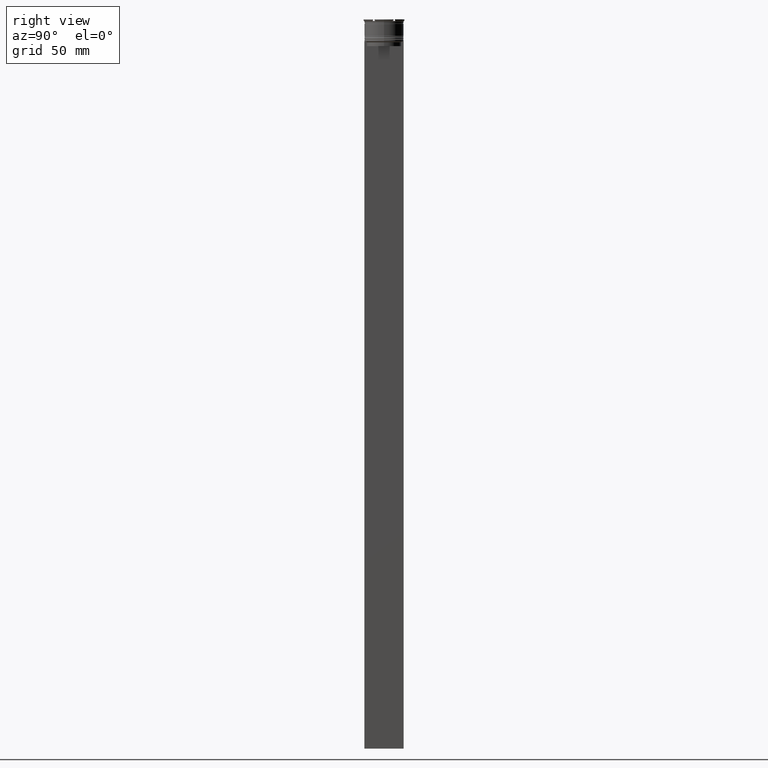
[diagram: clean part render]
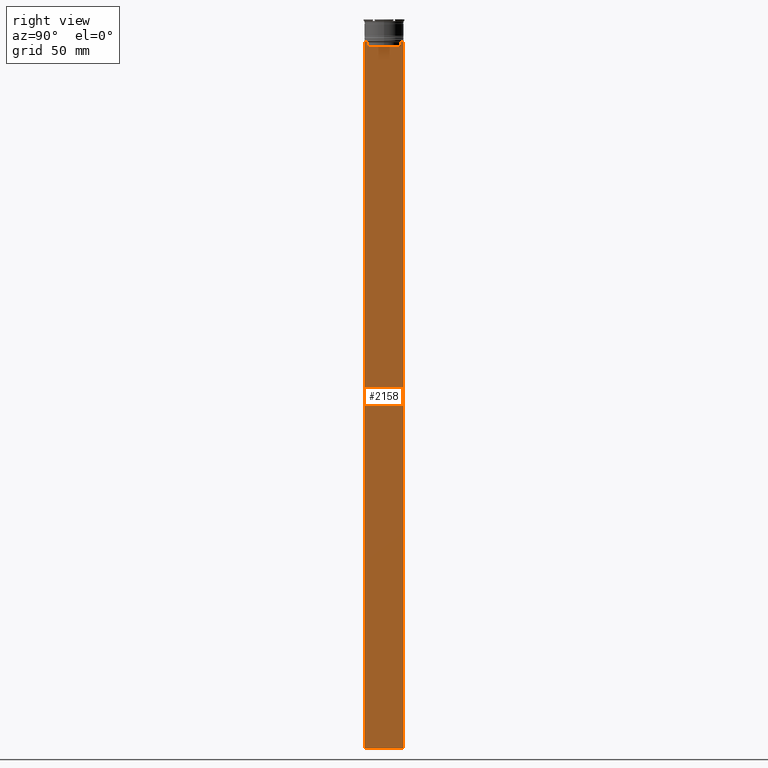
[diagram: same view with one face highlighted and labeled with its STEP entity id]
A machine part, right view. The second image highlights one B-rep face of the part: STEP entity #2158.
In plain terms, the highlighted planar face has unit normal (-1, 0, 0).
Its self-contained STEP definition (entity closure, byte-faithful):
#8 = EDGE_CURVE ( 'NONE', #1983, #918, #2134, .T. ) ;
#26 = CARTESIAN_POINT ( 'NONE',  ( 0.5000000000000000000, 12.50000000000000711, -464.0000000000000000 ) ) ;
#128 = VERTEX_POINT ( 'NONE', #1977 ) ;
#129 = CARTESIAN_POINT ( 'NONE',  ( 0.5000000000000000000, -11.22219891450652973, -14.16667035398018903 ) ) ;
#131 = DIRECTION ( 'NONE',  ( -1.000000000000000000, 0.000000000000000000, 0.000000000000000000 ) ) ;
#142 = LINE ( 'NONE', #347, #1583 ) ;
#144 = CARTESIAN_POINT ( 'NONE',  ( 0.5000000000000000000, 10.90000000000000213, -17.00000000000000000 ) ) ;
#161 = DIRECTION ( 'NONE',  ( -0.000000000000000000, -0.000000000000000000, 1.000000000000000000 ) ) ;
#218 = LINE ( 'NONE', #420, #1773 ) ;
#248 = VERTEX_POINT ( 'NONE', #2034 ) ;
#339 = ORIENTED_EDGE ( 'NONE', *, *, #1275, .T. ) ;
#347 = CARTESIAN_POINT ( 'NONE',  ( 0.5000000000000000000, -12.49999999999999289, 11.01999200639360765 ) ) ;
#367 = PLANE ( 'NONE',  #1644 ) ;
#380 = LINE ( 'NONE', #144, #403 ) ;
#403 = VECTOR ( 'NONE', #1677, 1000.000000000000000 ) ;
#420 = CARTESIAN_POINT ( 'NONE',  ( 0.5000000000000000000, -12.49999999999999289, -14.00000000000000178 ) ) ;
#474 = CARTESIAN_POINT ( 'NONE',  ( 0.5000000000000000000, 10.88852607105296144, -17.00000000000000000 ) ) ;
#476 = EDGE_CURVE ( 'NONE', #2355, #128, #142, .T. ) ;
#500 = VERTEX_POINT ( 'NONE', #807 ) ;
#512 = ORIENTED_EDGE ( 'NONE', *, *, #2580, .T. ) ;
#548 = EDGE_CURVE ( 'NONE', #1887, #2882, #218, .T. ) ;
#572 = B_SPLINE_CURVE_WITH_KNOTS ( 'NONE', 3,
 ( #2584, #2094, #129, #2318 ),
 .UNSPECIFIED., .F., .F.,
 ( 4, 4 ),
 ( 0.05041323384703226551, 0.05112713601261605068 ),
 .UNSPECIFIED. ) ;
#613 = DIRECTION ( 'NONE',  ( 0.000000000000000000, 0.000000000000000000, -1.000000000000000000 ) ) ;
#779 = VERTEX_POINT ( 'NONE', #474 ) ;
#794 = CARTESIAN_POINT ( 'NONE',  ( 0.5000000000000000000, -12.49999999999999289, -14.00000000000000178 ) ) ;
#807 = CARTESIAN_POINT ( 'NONE',  ( 0.5000000000000000000, 10.88852607105296322, -14.50000000000000000 ) ) ;
#918 = VERTEX_POINT ( 'NONE', #2125 ) ;
#998 = CARTESIAN_POINT ( 'NONE',  ( 0.5000000000000000000, 12.38991525394746773, -14.00000000000000178 ) ) ;
#1020 = DIRECTION ( 'NONE',  ( 0.000000000000000000, 0.000000000000000000, 1.000000000000000000 ) ) ;
#1027 = EDGE_CURVE ( 'NONE', #1887, #1848, #2608, .T. ) ;
#1032 = DIRECTION ( 'NONE',  ( 0.000000000000000000, 0.000000000000000000, -1.000000000000000000 ) ) ;
#1080 = CARTESIAN_POINT ( 'NONE',  ( 0.5000000000000000000, 12.50000000000000711, -14.00000000000000178 ) ) ;
#1081 = VERTEX_POINT ( 'NONE', #1137 ) ;
#1099 = VECTOR ( 'NONE', #1652, 1000.000000000000000 ) ;
#1136 = ORIENTED_EDGE ( 'NONE', *, *, #548, .T. ) ;
#1137 = CARTESIAN_POINT ( 'NONE',  ( 0.5000000000000000000, 11.38902980942626719, -14.00000000000000178 ) ) ;
#1201 = ORIENTED_EDGE ( 'NONE', *, *, #2873, .T. ) ;
#1226 = ORIENTED_EDGE ( 'NONE', *, *, #2130, .T. ) ;
#1238 = EDGE_CURVE ( 'NONE', #2882, #1081, #1403, .T. ) ;
#1261 = EDGE_LOOP ( 'NONE', ( #1624, #1201, #2749, #1393, #1338, #512, #2011, #339, #2166, #1226, #1288, #1136 ) ) ;
#1275 = EDGE_CURVE ( 'NONE', #2637, #2355, #1835, .T. ) ;
#1288 = ORIENTED_EDGE ( 'NONE', *, *, #1027, .F. ) ;
#1338 = ORIENTED_EDGE ( 'NONE', *, *, #8, .T. ) ;
#1393 = ORIENTED_EDGE ( 'NONE', *, *, #2080, .T. ) ;
#1403 = LINE ( 'NONE', #794, #1099 ) ;
#1435 = DIRECTION ( 'NONE',  ( 0.000000000000000000, -1.000000000000000000, 0.000000000000000000 ) ) ;
#1476 = CARTESIAN_POINT ( 'NONE',  ( 0.5000000000000000000, -12.49999999999999289, 11.01999200639360765 ) ) ;
#1583 = VECTOR ( 'NONE', #1032, 1000.000000000000000 ) ;
#1624 = ORIENTED_EDGE ( 'NONE', *, *, #1238, .T. ) ;
#1627 = CARTESIAN_POINT ( 'NONE',  ( 0.5000000000000000000, 11.38902980942626719, -14.00000000000000178 ) ) ;
#1644 = AXIS2_PLACEMENT_3D ( 'NONE', #1476, #131, #1020 ) ;
#1652 = DIRECTION ( 'NONE',  ( 0.000000000000000000, -1.000000000000000000, 0.000000000000000000 ) ) ;
#1677 = DIRECTION ( 'NONE',  ( 0.000000000000000000, -1.000000000000000000, 0.000000000000000000 ) ) ;
#1713 = CARTESIAN_POINT ( 'NONE',  ( 0.5000000000000000000, 12.50000000000000711, 11.01999200639360765 ) ) ;
#1771 = CARTESIAN_POINT ( 'NONE',  ( 0.5000000000000000000, -12.49999999999999289, -14.00000000000000178 ) ) ;
#1773 = VECTOR ( 'NONE', #2505, 1000.000000000000000 ) ;
#1778 = VECTOR ( 'NONE', #613, 1000.000000000000000 ) ;
#1835 = LINE ( 'NONE', #2099, #2852 ) ;
#1848 = VERTEX_POINT ( 'NONE', #26 ) ;
#1851 = CARTESIAN_POINT ( 'NONE',  ( 0.5000000000000000000, 11.05536450345590538, -14.33333719074559376 ) ) ;
#1876 = DIRECTION ( 'NONE',  ( 0.000000000000000000, 1.000000000000000000, 0.000000000000000000 ) ) ;
#1887 = VERTEX_POINT ( 'NONE', #1080 ) ;
#1931 = CARTESIAN_POINT ( 'NONE',  ( 0.5000000000000000000, -12.49999999999999289, -464.0000000000000000 ) ) ;
#1974 = DIRECTION ( 'NONE',  ( 0.000000000000000000, -1.000000000000000000, 0.000000000000000000 ) ) ;
#1977 = CARTESIAN_POINT ( 'NONE',  ( 0.5000000000000000000, -12.49999999999999289, -464.0000000000000000 ) ) ;
#1983 = VERTEX_POINT ( 'NONE', #2543 ) ;
#2011 = ORIENTED_EDGE ( 'NONE', *, *, #2274, .T. ) ;
#2034 = CARTESIAN_POINT ( 'NONE',  ( 0.5000000000000000000, -11.38902980942626719, -14.00000000000000178 ) ) ;
#2080 = EDGE_CURVE ( 'NONE', #779, #1983, #380, .T. ) ;
#2094 = CARTESIAN_POINT ( 'NONE',  ( 0.5000000000000000000, -11.05536450423839234, -14.33333718996393102 ) ) ;
#2099 = CARTESIAN_POINT ( 'NONE',  ( 0.5000000000000000000, -12.49999999999999289, -14.00000000000000178 ) ) ;
#2125 = CARTESIAN_POINT ( 'NONE',  ( 0.5000000000000000000, -10.88852607105296322, -14.50000000000000000 ) ) ;
#2130 = EDGE_CURVE ( 'NONE', #128, #1848, #2330, .T. ) ;
#2134 = LINE ( 'NONE', #2617, #2848 ) ;
#2139 = CARTESIAN_POINT ( 'NONE',  ( 0.5000000000000000000, 10.88852607105296322, -14.50000000000000000 ) ) ;
#2158 = ADVANCED_FACE ( 'NONE', ( #2378 ), #367, .F. ) ;
#2166 = ORIENTED_EDGE ( 'NONE', *, *, #476, .T. ) ;
#2172 = CARTESIAN_POINT ( 'NONE',  ( 0.5000000000000000000, -12.49999999999999289, -14.00000000000000178 ) ) ;
#2180 = DIRECTION ( 'NONE',  ( 0.000000000000000000, 0.000000000000000000, -1.000000000000000000 ) ) ;
#2196 = VECTOR ( 'NONE', #1974, 1000.000000000000000 ) ;
#2213 = LINE ( 'NONE', #2172, #2196 ) ;
#2274 = EDGE_CURVE ( 'NONE', #248, #2637, #2213, .T. ) ;
#2318 = CARTESIAN_POINT ( 'NONE',  ( 0.5000000000000000000, -11.38902980942626719, -14.00000000000000178 ) ) ;
#2330 = LINE ( 'NONE', #1931, #2717 ) ;
#2355 = VERTEX_POINT ( 'NONE', #1771 ) ;
#2374 = B_SPLINE_CURVE_WITH_KNOTS ( 'NONE', 3,
 ( #1627, #2563, #1851, #2139 ),
 .UNSPECIFIED., .F., .F.,
 ( 4, 4 ),
 ( 0.01935560801904634073, 0.02006307108468586772 ),
 .UNSPECIFIED. ) ;
#2378 = FACE_OUTER_BOUND ( 'NONE', #1261, .T. ) ;
#2505 = DIRECTION ( 'NONE',  ( 0.000000000000000000, -1.000000000000000000, 0.000000000000000000 ) ) ;
#2543 = CARTESIAN_POINT ( 'NONE',  ( 0.5000000000000000000, -10.88852607105296144, -17.00000000000000000 ) ) ;
#2563 = CARTESIAN_POINT ( 'NONE',  ( 0.5000000000000000000, 11.22219891375843304, -14.16667035472756808 ) ) ;
#2580 = EDGE_CURVE ( 'NONE', #918, #248, #572, .T. ) ;
#2584 = CARTESIAN_POINT ( 'NONE',  ( 0.5000000000000000000, -10.88852607105296322, -14.50000000000000000 ) ) ;
#2608 = LINE ( 'NONE', #1713, #1778 ) ;
#2617 = CARTESIAN_POINT ( 'NONE',  ( 0.5000000000000000000, -10.88852607105296322, 0.000000000000000000 ) ) ;
#2637 = VERTEX_POINT ( 'NONE', #2820 ) ;
#2665 = EDGE_CURVE ( 'NONE', #500, #779, #2860, .T. ) ;
#2717 = VECTOR ( 'NONE', #1876, 1000.000000000000000 ) ;
#2749 = ORIENTED_EDGE ( 'NONE', *, *, #2665, .T. ) ;
#2818 = VECTOR ( 'NONE', #2180, 1000.000000000000000 ) ;
#2820 = CARTESIAN_POINT ( 'NONE',  ( 0.5000000000000000000, -12.38991525394746773, -14.00000000000000178 ) ) ;
#2843 = CARTESIAN_POINT ( 'NONE',  ( 0.5000000000000000000, 10.88852607105296322, 0.000000000000000000 ) ) ;
#2848 = VECTOR ( 'NONE', #161, 1000.000000000000000 ) ;
#2852 = VECTOR ( 'NONE', #1435, 1000.000000000000000 ) ;
#2860 = LINE ( 'NONE', #2843, #2818 ) ;
#2873 = EDGE_CURVE ( 'NONE', #1081, #500, #2374, .T. ) ;
#2882 = VERTEX_POINT ( 'NONE', #998 ) ;